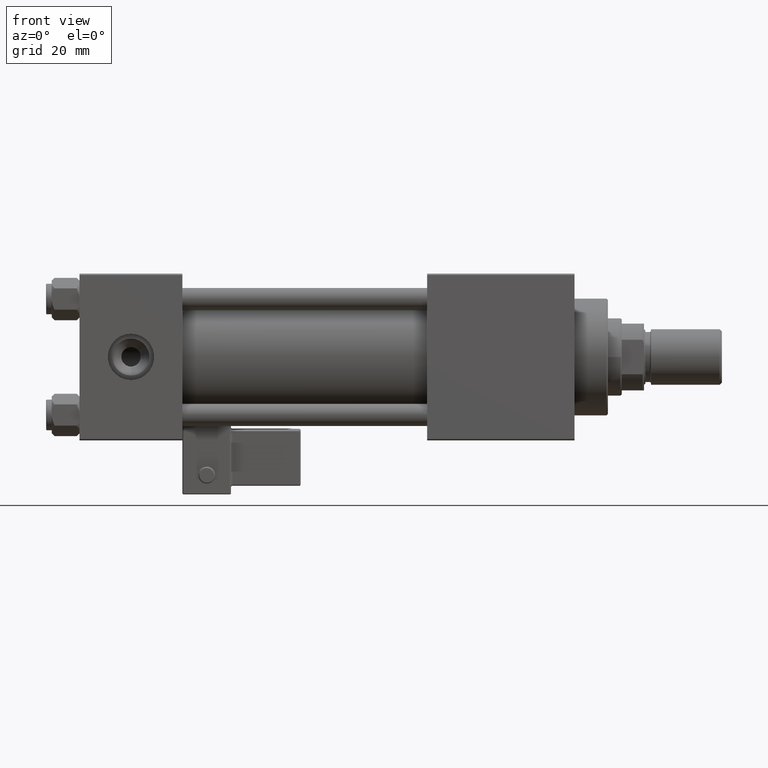
[diagram: clean part render]
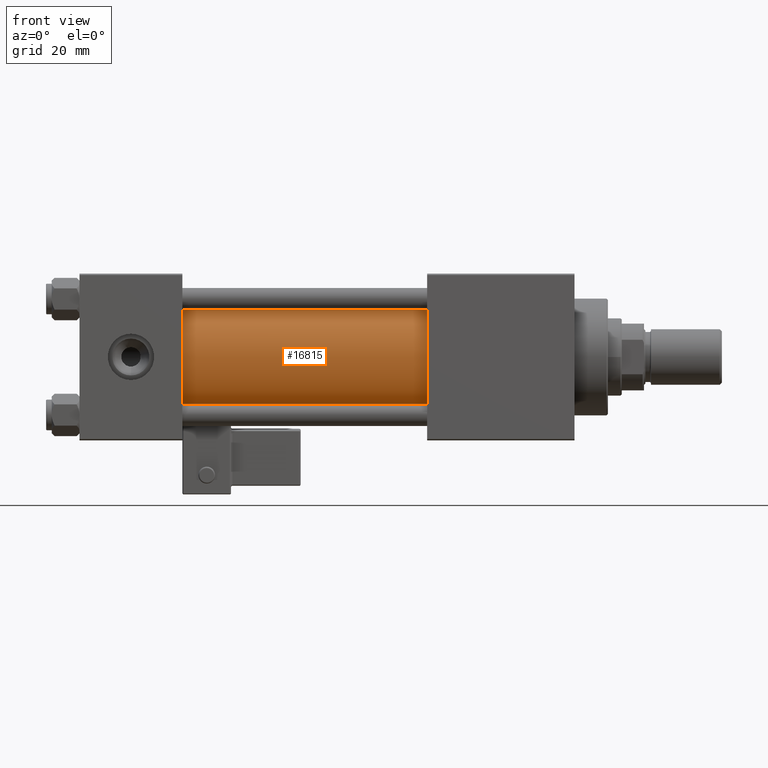
[diagram: same view with one face highlighted and labeled with its STEP entity id]
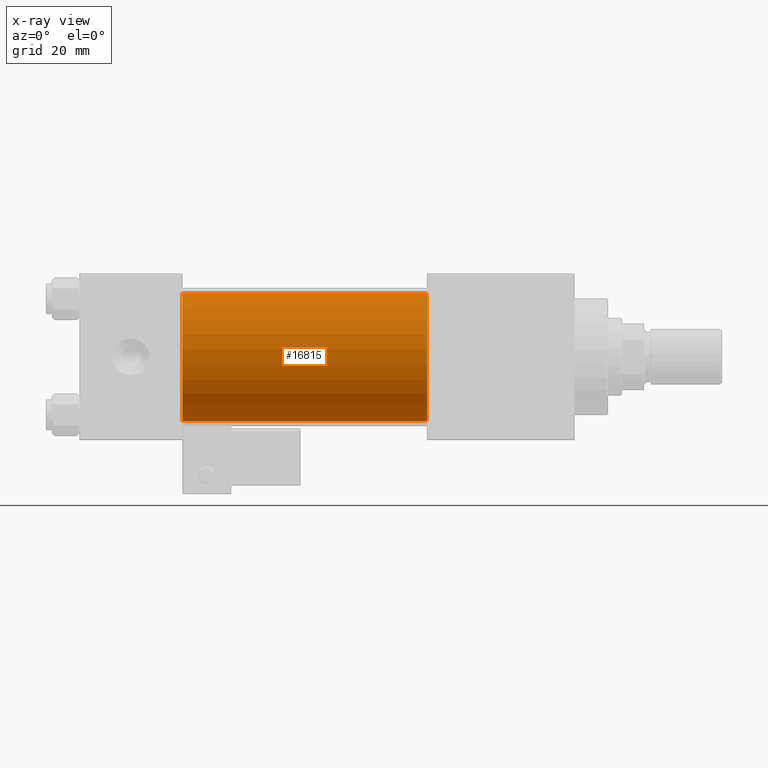
[diagram: x-ray of the same camera — body ghosted, the highlighted face saturated]
A machine part, front view. The second image highlights one B-rep face of the part: STEP entity #16815.
The next image is the same camera in x-ray: the body ghosted, the highlighted face saturated — about 0% of this face is hidden behind the body in this view.
In plain terms, the highlighted cylindrical surface (partial cylindrical patch) has radius 23 mm, axis along (-1, -0, -0).
Its self-contained STEP definition (entity closure, byte-faithful):
#381 = CARTESIAN_POINT ( 'NONE',  ( 125.0000000000000000, -2.602085213965210642E-15, 23.00000000000000000 ) ) ;
#1203 = VERTEX_POINT ( 'NONE', #13868 ) ;
#2616 = ORIENTED_EDGE ( 'NONE', *, *, #31244, .T. ) ;
#3146 = DIRECTION ( 'NONE',  ( 1.000000000000000000, 0.000000000000000000, 0.000000000000000000 ) ) ;
#4071 = DIRECTION ( 'NONE',  ( 0.000000000000000000, 0.000000000000000000, 1.000000000000000000 ) ) ;
#7473 = AXIS2_PLACEMENT_3D ( 'NONE', #47765, #3146, #11186 ) ;
#8094 = EDGE_CURVE ( 'NONE', #1203, #15305, #14295, .T. ) ;
#8251 = ORIENTED_EDGE ( 'NONE', *, *, #16893, .T. ) ;
#11186 = DIRECTION ( 'NONE',  ( 0.000000000000000000, 0.000000000000000000, -1.000000000000000000 ) ) ;
#13868 = CARTESIAN_POINT ( 'NONE',  ( 125.0000000000000000, -2.602085213965210642E-15, 23.00000000000000000 ) ) ;
#14033 = CARTESIAN_POINT ( 'NONE',  ( 125.0000000000000000, 2.146024240737016609E-16, -23.00000000000000000 ) ) ;
#14236 = AXIS2_PLACEMENT_3D ( 'NONE', #16110, #51916, #4071 ) ;
#14295 = CIRCLE ( 'NONE', #7473, 23.00000000000000000 ) ;
#15305 = VERTEX_POINT ( 'NONE', #43475 ) ;
#16110 = CARTESIAN_POINT ( 'NONE',  ( 125.0000000000000000, -2.602085213965210642E-15, 0.000000000000000000 ) ) ;
#16815 = ADVANCED_FACE ( 'NONE', ( #40664 ), #39625, .T. ) ;
#16893 = EDGE_CURVE ( 'NONE', #36706, #32373, #21050, .T. ) ;
#19794 = VECTOR ( 'NONE', #40465, 1000.000000000000000 ) ;
#21050 = CIRCLE ( 'NONE', #33865, 23.00000000000000000 ) ;
#29260 = CARTESIAN_POINT ( 'NONE',  ( 37.00000000000000711, 2.146024240737016609E-16, -23.00000000000000000 ) ) ;
#30335 = DIRECTION ( 'NONE',  ( -1.000000000000000000, -0.000000000000000000, -0.000000000000000000 ) ) ;
#31244 = EDGE_CURVE ( 'NONE', #1203, #36706, #31932, .T. ) ;
#31932 = LINE ( 'NONE', #381, #19794 ) ;
#32373 = VERTEX_POINT ( 'NONE', #29260 ) ;
#33865 = AXIS2_PLACEMENT_3D ( 'NONE', #34423, #45436, #40926 ) ;
#34423 = CARTESIAN_POINT ( 'NONE',  ( 37.00000000000000711, -2.602085213965210642E-15, 0.000000000000000000 ) ) ;
#35739 = VECTOR ( 'NONE', #30335, 1000.000000000000000 ) ;
#36706 = VERTEX_POINT ( 'NONE', #47807 ) ;
#39625 = CYLINDRICAL_SURFACE ( 'NONE', #14236, 23.00000000000000000 ) ;
#40465 = DIRECTION ( 'NONE',  ( -1.000000000000000000, -0.000000000000000000, -0.000000000000000000 ) ) ;
#40664 = FACE_OUTER_BOUND ( 'NONE', #45285, .T. ) ;
#40926 = DIRECTION ( 'NONE',  ( 0.000000000000000000, 0.000000000000000000, 1.000000000000000000 ) ) ;
#41284 = LINE ( 'NONE', #14033, #35739 ) ;
#43475 = CARTESIAN_POINT ( 'NONE',  ( 125.0000000000000000, 2.146024240737016609E-16, -23.00000000000000000 ) ) ;
#44105 = ORIENTED_EDGE ( 'NONE', *, *, #8094, .F. ) ;
#45285 = EDGE_LOOP ( 'NONE', ( #49627, #44105, #2616, #8251 ) ) ;
#45436 = DIRECTION ( 'NONE',  ( 1.000000000000000000, -0.000000000000000000, 0.000000000000000000 ) ) ;
#47765 = CARTESIAN_POINT ( 'NONE',  ( 125.0000000000000000, -2.602085213965210642E-15, 0.000000000000000000 ) ) ;
#47807 = CARTESIAN_POINT ( 'NONE',  ( 37.00000000000000711, -2.602085213965210642E-15, 23.00000000000000000 ) ) ;
#48295 = EDGE_CURVE ( 'NONE', #15305, #32373, #41284, .T. ) ;
#49627 = ORIENTED_EDGE ( 'NONE', *, *, #48295, .F. ) ;
#51916 = DIRECTION ( 'NONE',  ( -1.000000000000000000, -0.000000000000000000, -0.000000000000000000 ) ) ;